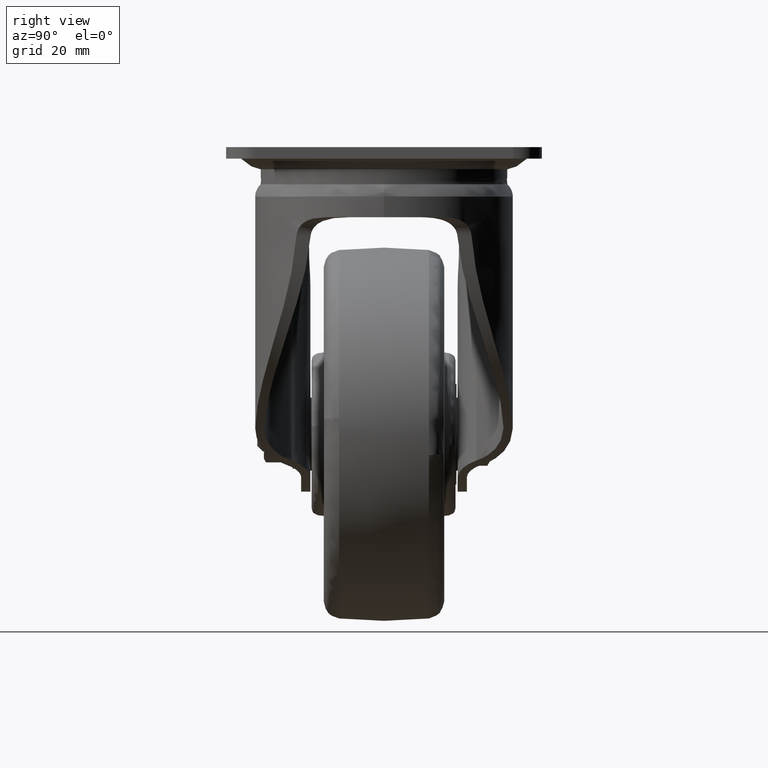
[diagram: clean part render]
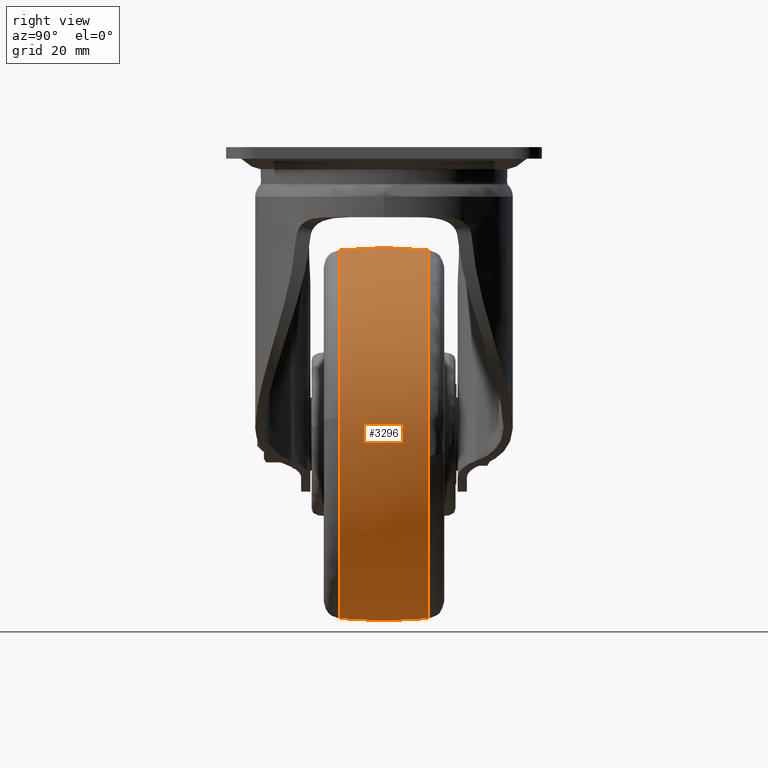
[diagram: same view with one face highlighted and labeled with its STEP entity id]
A machine part, right view. The second image highlights one B-rep face of the part: STEP entity #3296.
In plain terms, the highlighted face is a freeform B-spline surface patch.
Its self-contained STEP definition (entity closure, byte-faithful):
#3085=CARTESIAN_POINT('',(-40.0,15.624983328062680,-35.816020549022269));
#3086=VERTEX_POINT('',#3085);
#3100=CARTESIAN_POINT('',(23.773927490638499,15.624983418187700,-107.243571837012100));
#3101=VERTEX_POINT('',#3100);
#3102=CARTESIAN_POINT('',(23.773927490638503,15.624983418187707,-107.243571837012080));
#3103=CARTESIAN_POINT('',(24.183978958266390,15.624983415909677,-103.633392271098900));
#3104=CARTESIAN_POINT('',(24.183978934183489,15.624983413358351,-100.000000091462100));
#3105=CARTESIAN_POINT('',(24.183978508758109,15.624983368289220,-35.816020592165273));
#3106=CARTESIAN_POINT('',(-40.0,15.624983328062680,-35.816020549022269));
#3114=(BOUNDED_CURVE()B_SPLINE_CURVE(2,(#3102,#3103,#3104,#3105,#3106),.UNSPECIFIED.,.F.,.U.)B_SPLINE_CURVE_WITH_KNOTS((3,2,3),(0.230444236947596,0.250000000000000,0.500000000000000),.UNSPECIFIED.)CURVE()GEOMETRIC_REPRESENTATION_ITEM()RATIONAL_B_SPLINE_CURVE((0.957762333846209,0.977088998452912,1.0,0.707106781186548,1.0))REPRESENTATION_ITEM(''));
#3115=EDGE_CURVE('',#3101,#3086,#3114,.T.);
#3164=CARTESIAN_POINT('',(-40.0,15.624983328092540,-164.183979450974590));
#3165=VERTEX_POINT('',#3164);
#3166=CARTESIAN_POINT('',(-40.0,15.624983328092540,-164.183979450974590));
#3167=CARTESIAN_POINT('',(17.306520510240851,15.624983373146751,-164.183979499295300));
#3168=CARTESIAN_POINT('',(23.773927490638503,15.624983418187707,-107.243571837012080));
#3176=(BOUNDED_CURVE()B_SPLINE_CURVE(2,(#3166,#3167,#3168),.UNSPECIFIED.,.F.,.U.)B_SPLINE_CURVE_WITH_KNOTS((3,3),(0.0,0.230444236947596),.UNSPECIFIED.)CURVE()GEOMETRIC_REPRESENTATION_ITEM()RATIONAL_B_SPLINE_CURVE((1.0,0.730017782733635,0.957762333846209))REPRESENTATION_ITEM(''));
#3177=EDGE_CURVE('',#3165,#3101,#3176,.T.);
#3199=CARTESIAN_POINT('',(-41.789533625138489,-17.198141396806342,-164.010817172693440));
#3200=CARTESIAN_POINT('',(-41.817187922014043,-8.627517978399819,-164.999999000000140));
#3201=CARTESIAN_POINT('',(-41.817187922014050,0.0,-164.999999000000140));
#3202=CARTESIAN_POINT('',(-41.817187922014050,8.627509416960843,-164.999999000000140));
#3203=CARTESIAN_POINT('',(-41.789533679842471,17.198124442932297,-164.010819129430390));
#3204=CARTESIAN_POINT('',(-40.899977710472463,-17.198141396806335,-164.010817172693440));
#3205=CARTESIAN_POINT('',(-40.913885384760995,-8.627517978399819,-164.999999000000060));
#3206=CARTESIAN_POINT('',(-40.913885384760995,0.0,-164.999999000000170));
#3207=CARTESIAN_POINT('',(-40.913885384760995,8.627509416960843,-164.999999000000170));
#3208=CARTESIAN_POINT('',(-40.899977737983747,17.198124442932297,-164.010819129430360));
#3209=CARTESIAN_POINT('',(24.010817172693372,-17.198141396806339,-164.010817172693320));
#3210=CARTESIAN_POINT('',(24.999999000000095,-8.627517978399817,-164.999999000000090));
#3211=CARTESIAN_POINT('',(24.999999000000102,0.0,-164.999999000000030));
#3212=CARTESIAN_POINT('',(24.999999000000113,8.627509416960843,-164.999999000000060));
#3213=CARTESIAN_POINT('',(24.010819129430363,17.198124442932293,-164.010819129430390));
#3214=CARTESIAN_POINT('',(24.010817172693383,-17.198141396806335,-100.000000000000010));
#3215=CARTESIAN_POINT('',(24.999999000000106,-8.627517978399819,-100.0));
#3216=CARTESIAN_POINT('',(24.999999000000098,0.0,-100.0));
#3217=CARTESIAN_POINT('',(24.999999000000102,8.627509416960843,-100.0));
#3218=CARTESIAN_POINT('',(24.010819129430342,17.198124442932297,-100.0));
#3219=CARTESIAN_POINT('',(24.010817172693372,-17.198141396806339,-35.989182827306642));
#3220=CARTESIAN_POINT('',(24.999999000000095,-8.627517978399817,-35.000000999999905));
#3221=CARTESIAN_POINT('',(24.999999000000102,0.0,-35.000000999999919));
#3222=CARTESIAN_POINT('',(24.999999000000113,8.627509416960843,-35.000000999999912));
#3223=CARTESIAN_POINT('',(24.010819129430363,17.198124442932293,-35.989180870569669));
#3224=CARTESIAN_POINT('',(-40.899977710472477,-17.198141396806335,-35.989182827306642));
#3225=CARTESIAN_POINT('',(-40.913885384760995,-8.627517978399819,-35.000000999999905));
#3226=CARTESIAN_POINT('',(-40.913885384760995,0.0,-35.000000999999912));
#3227=CARTESIAN_POINT('',(-40.913885384760995,8.627509416960843,-35.000000999999905));
#3228=CARTESIAN_POINT('',(-40.899977737983747,17.198124442932297,-35.989180870569662));
#3229=CARTESIAN_POINT('',(-41.789533625138496,-17.198141396806339,-35.989182827306642));
#3230=CARTESIAN_POINT('',(-41.817187922014057,-8.627517978399819,-35.000000999999912));
#3231=CARTESIAN_POINT('',(-41.817187922014064,0.0,-35.000000999999912));
#3232=CARTESIAN_POINT('',(-41.817187922014057,8.627509416960843,-35.000000999999912));
#3233=CARTESIAN_POINT('',(-41.789533679842471,17.198124442932297,-35.989180870569655));
#3241=(BOUNDED_SURFACE()B_SPLINE_SURFACE(2,2,((#3199,#3204,#3209,#3214,#3219,#3224,#3229),(#3200,#3205,#3210,#3215,#3220,#3225,#3230),(#3201,#3206,#3211,#3216,#3221,#3226,#3231),(#3202,#3207,#3212,#3217,#3222,#3227,#3232),(#3203,#3208,#3213,#3218,#3223,#3228,#3233)),.UNSPECIFIED.,.F.,.F.,.U.)B_SPLINE_SURFACE_WITH_KNOTS((3,2,3),(3,1,2,1,3),(0.0,17.442398229427290,34.884779392435192),(0.0,2.153910491203015,109.849435051353590,217.544959611504310,219.698870102707300),.UNSPECIFIED.)GEOMETRIC_REPRESENTATION_ITEM()RATIONAL_B_SPLINE_SURFACE(((0.986832605375291,0.981118815028771,0.689715507356252,0.975405024682251,0.689715507356252,0.981118815028771,0.986832605375291),(0.997548039414901,0.991772206384301,0.697204721823746,0.985996373353702,0.697204721823746,0.991772206384301,0.997548039414901),(1.011715728752538,1.005857864376269,0.707106781186548,1.0,0.707106781186548,1.005857864376269,1.011715728752538),(0.997548053277199,0.991772220166337,0.697204731512362,0.985996387055474,0.697204731512362,0.991772220166337,0.997548053277199),(0.986832626344211,0.981118835876280,0.689715522011816,0.975405045408349,0.689715522011816,0.981118835876280,0.986832626344211)))REPRESENTATION_ITEM('')SURFACE());
#3242=CARTESIAN_POINT('',(-40.0,-15.624983249453040,-164.183979459211000));
#3243=VERTEX_POINT('',#3242);
#3244=CARTESIAN_POINT('',(-40.0,-15.624983249453040,-164.183979459211000));
#3245=CARTESIAN_POINT('',(-40.0,-11.895091171353000,-164.574636888703400));
#3246=CARTESIAN_POINT('',(-40.0,-1.475484581530805,-165.272330864823690));
#3247=CARTESIAN_POINT('',(-40.0,8.976074389182042,-164.880650564697310));
#3248=CARTESIAN_POINT('',(-40.0,15.624983328092540,-164.183979450974590));
#3249=B_SPLINE_CURVE_WITH_KNOTS('',3,(#3244,#3245,#3246,#3247,#3248),.UNSPECIFIED.,.F.,.U.,(4,1,4),(-5.067534E-009,11.250895787474681,31.306772043252369),.UNSPECIFIED.);
#3250=EDGE_CURVE('',#3243,#3165,#3249,.T.);
#3251=ORIENTED_EDGE('',*,*,#3250,.T.);
#3252=ORIENTED_EDGE('',*,*,#3177,.T.);
#3253=ORIENTED_EDGE('',*,*,#3115,.T.);
#3254=CARTESIAN_POINT('',(-40.0,-15.624991867398739,-35.816021869721020));
#3255=VERTEX_POINT('',#3254);
#3256=CARTESIAN_POINT('',(-40.0,-15.624991867398739,-35.816021869721020));
#3257=CARTESIAN_POINT('',(-40.0,-11.895098938043139,-35.425363726591939));
#3258=CARTESIAN_POINT('',(-40.0,-1.475489095710269,-34.727670766765812));
#3259=CARTESIAN_POINT('',(-40.0,8.976072468146016,-35.119347881441733));
#3260=CARTESIAN_POINT('',(-40.0,15.624983328062680,-35.816020549022269));
#3261=B_SPLINE_CURVE_WITH_KNOTS('',3,(#3256,#3257,#3258,#3259,#3260),.UNSPECIFIED.,.F.,.U.,(4,1,4),(-5.071374E-009,11.250898902869480,31.306780708640520),.UNSPECIFIED.);
#3262=EDGE_CURVE('',#3255,#3086,#3261,.T.);
#3263=ORIENTED_EDGE('',*,*,#3262,.F.);
#3264=CARTESIAN_POINT('',(23.935817926798560,-15.624988052342131,-94.361360709245218));
#3265=VERTEX_POINT('',#3264);
#3266=CARTESIAN_POINT('',(23.935817926798556,-15.624988052342138,-94.361360709245218));
#3267=CARTESIAN_POINT('',(18.772575838400797,-15.624991925082632,-35.816021821541383));
#3268=CARTESIAN_POINT('',(-40.0,-15.624991867398739,-35.816021869721020));
#3276=(BOUNDED_CURVE()B_SPLINE_CURVE(2,(#3266,#3267,#3268),.UNSPECIFIED.,.F.,.U.)B_SPLINE_CURVE_WITH_KNOTS((3,3),(0.265281546539669,0.500000000000000),.UNSPECIFIED.)CURVE()GEOMETRIC_REPRESENTATION_ITEM()RATIONAL_B_SPLINE_CURVE((0.966381847839370,0.725010226604353,1.0))REPRESENTATION_ITEM(''));
#3277=EDGE_CURVE('',#3265,#3255,#3276,.T.);
#3278=ORIENTED_EDGE('',*,*,#3277,.F.);
#3279=CARTESIAN_POINT('',(-40.0,-15.624983249453040,-164.183979459211000));
#3280=CARTESIAN_POINT('',(24.183977723193692,-15.624983302273549,-164.183979415093320));
#3281=CARTESIAN_POINT('',(24.183978269496649,-15.624987668930300,-100.000000572168700));
#3282=CARTESIAN_POINT('',(24.183978293539827,-15.624987861109851,-97.175219786306471));
#3283=CARTESIAN_POINT('',(23.935817926798556,-15.624988052342138,-94.361360709245218));
#3291=(BOUNDED_CURVE()B_SPLINE_CURVE(2,(#3279,#3280,#3281,#3282,#3283),.UNSPECIFIED.,.F.,.U.)B_SPLINE_CURVE_WITH_KNOTS((3,2,3),(0.0,0.250000000000000,0.265281546539669),.UNSPECIFIED.)CURVE()GEOMETRIC_REPRESENTATION_ITEM()RATIONAL_B_SPLINE_CURVE((1.0,0.707106781186547,1.0,0.982096554582195,0.966381847839370))REPRESENTATION_ITEM(''));
#3292=EDGE_CURVE('',#3243,#3265,#3291,.T.);
#3293=ORIENTED_EDGE('',*,*,#3292,.F.);
#3294=EDGE_LOOP('',(#3251,#3252,#3253,#3263,#3278,#3293));
#3295=FACE_OUTER_BOUND('',#3294,.T.);
#3296=ADVANCED_FACE('',(#3295),#3241,.T.);